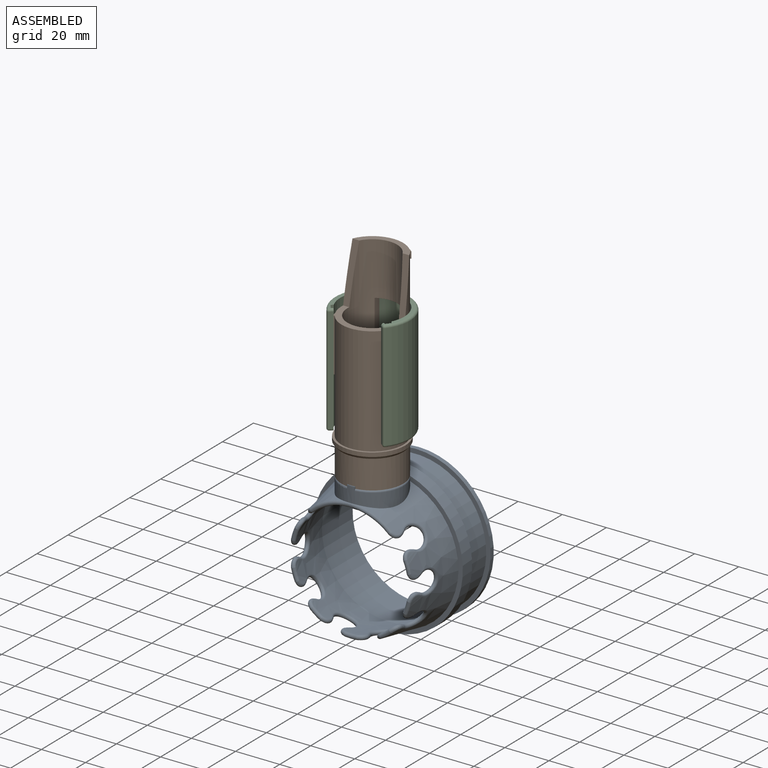
[diagram: assembled view]
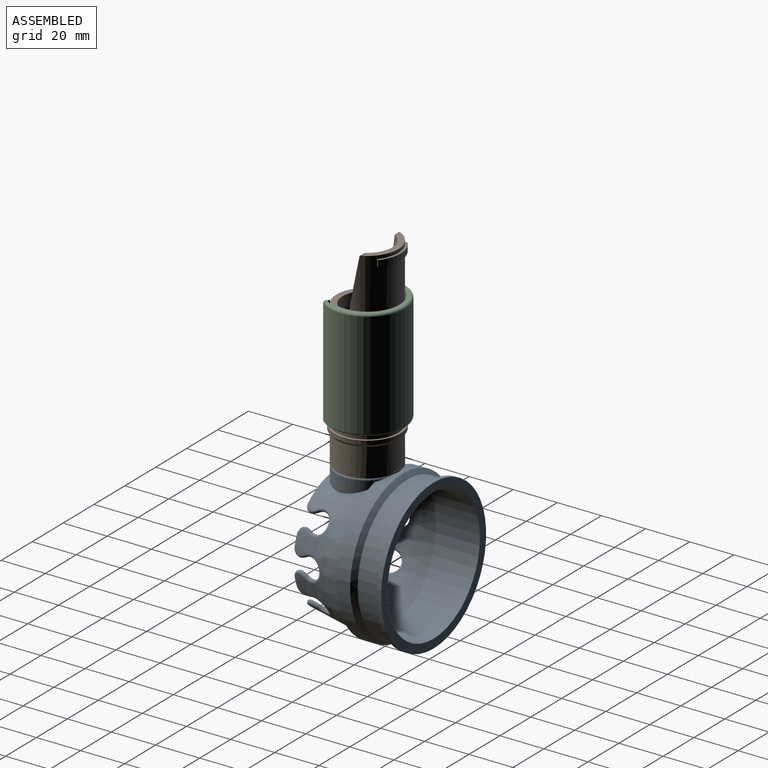
[diagram: assembled view, second angle]
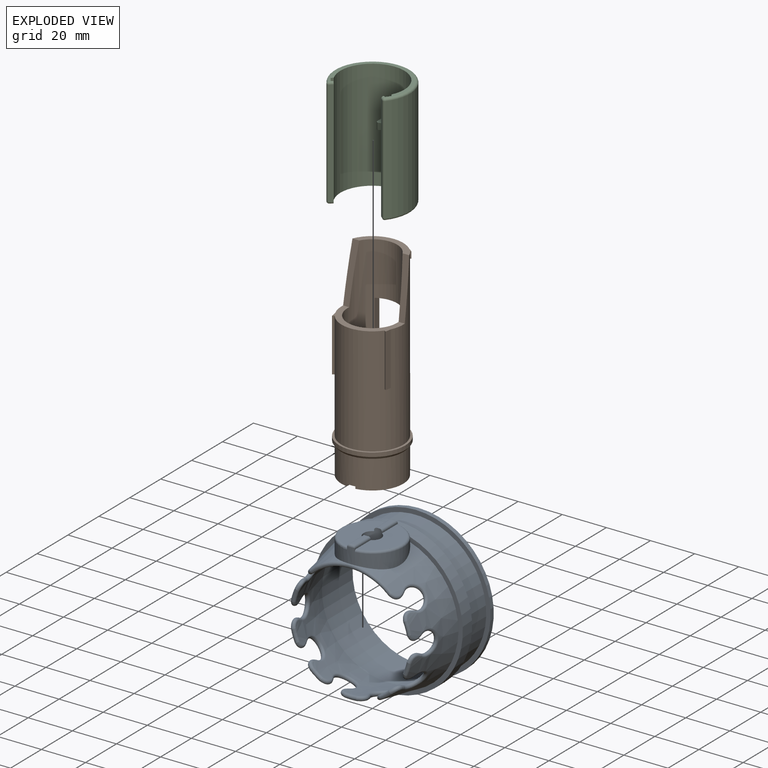
[diagram: exploded view]
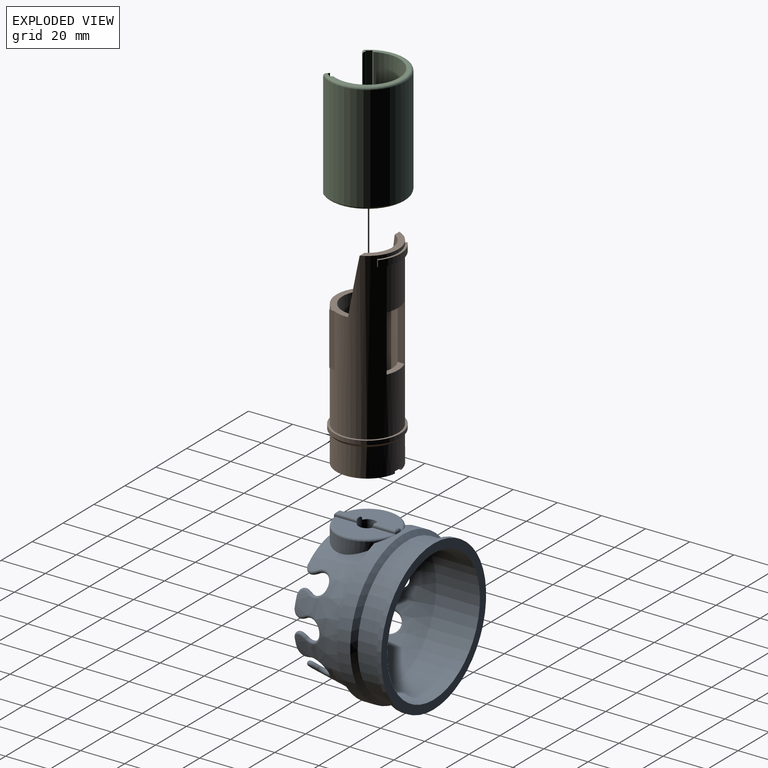
[diagram: exploded view, second angle]
ASSEMBLY  parts=3 mates=3
PART A: 89 faces, bbox 69.7x68.1x45.1 mm
  f0: cylinder r=14mm len=28mm, axis (1,0,0), area 382.5mm2, adj f1,f81,f82,f83,f84,f85,f86,f87
  f1: torus R=13mm, axis (1,0,0), area 3.9mm2, adj f0,f2,f79,f80
  f2: plane 9.07x1.5mm, normal (1,0,0), area 13.5mm2, adj f1,f3,f79,f80
  f3: cylinder r=4mm len=8.1mm, axis (1,0,0), area 161.9mm2, adj f2,f4,f8,f9,f10,f74,f75,f77
  f4: plane 10.3x0.66mm, normal (0,-1,0), area 5.2mm2, adj f3,f5,f6,f8,f78
  f5: bspline ~7.89x3.73mm, area 6.4mm2, adj f4,f78,f82,f86
  f6: cylinder r=14mm len=3.5mm, axis (1,0,0), area 2.3mm2, adj f4,f7,f75,f86
  f7: torus R=13mm, axis (1,0,0), area 3.9mm2, adj f6,f8,f9,f74
  f8: cylinder r=1mm len=10.29mm, axis (0,0,1), area 15.2mm2, adj f3,f4,f7,f9
  f9: plane 9.07x1.5mm, normal (1,0,0), area 13.5mm2, adj f3,f7,f8,f74
  f10: cone r=30mm half-angle=10deg, axis (0,0,-1), area 3197.5mm2, adj f3,f11,f15,f16,f20,f21,f22,f23
  f11: bspline ~10.63x9.41mm, area 32.6mm2, adj f10,f12,f15,f73
  f12: bspline ~11.4x9.5mm, area 35.4mm2, adj f11,f13,f14,f15,f73,f84
  f13: bspline ~8.24x3.59mm, area 11.9mm2, adj f12,f15,f16,f84
  f14: bspline ~7.26x3.59mm, area 11.9mm2, adj f12,f72,f73,f84
  f15: bspline ~7.17x3.51mm, area 10.6mm2, adj f10,f11,f12,f13,f16
  f16: torus R=26.85mm, axis (0,0,1), area 17.4mm2, adj f10,f13,f15,f17,f20,f84
  f17: bspline ~8.25x3.85mm, area 11.9mm2, adj f16,f18,f20,f84
  f18: bspline ~9.5x9.29mm, area 35.4mm2, adj f17,f19,f20,f21,f22,f84
  f19: bspline ~7.26x3.6mm, area 11.9mm2, adj f18,f22,f23,f84
  f20: bspline ~7.04x3.58mm, area 10.6mm2, adj f10,f16,f17,f18,f21
  f21: bspline ~9.41x8.68mm, area 32.6mm2, adj f10,f18,f20,f22
  f22: bspline ~7.04x3.3mm, area 10.6mm2, adj f10,f18,f19,f21,f23
  f23: torus R=26.85mm, axis (0,0,1), area 113.2mm2, adj f10,f19,f22,f24,f27,f28,f83,f84
  f24: bspline ~7.26x3.53mm, area 11.9mm2, adj f23,f25,f28,f84
  f25: bspline ~9.5x9.3mm, area 35.4mm2, adj f24,f26,f28,f29,f30,f84
  f26: bspline ~8.24x3.76mm, area 11.9mm2, adj f25,f30,f31,f84
  f27: cone r=25.69mm half-angle=80deg, axis (0,0,1), area 0mm2, adj f23,f83
  f28: bspline ~7.12x3.38mm, area 10.6mm2, adj f10,f23,f24,f25,f29
  f29: bspline ~9.41x8.68mm, area 32.6mm2, adj f10,f25,f28,f30
  f30: bspline ~7.17x3.9mm, area 10.6mm2, adj f10,f25,f26,f29,f31
  f31: torus R=26.85mm, axis (0,0,1), area 17.4mm2, adj f10,f26,f30,f32,f35,f84
  f32: bspline ~8.25x3.67mm, area 11.9mm2, adj f31,f33,f35,f84
  f33: bspline ~11.4x9.5mm, area 35.4mm2, adj f32,f34,f35,f36,f37,f84
  f34: bspline ~7.26x3.67mm, area 11.9mm2, adj f33,f37,f38,f84
  f35: bspline ~7.04x3.1mm, area 10.6mm2, adj f10,f31,f32,f33,f36
  f36: bspline ~10.63x9.41mm, area 32.6mm2, adj f10,f33,f35,f37
  f37: bspline ~7.04x3.1mm, area 10.6mm2, adj f10,f33,f34,f36,f38
  f38: torus R=26.85mm, axis (0,0,1), area 17.4mm2, adj f10,f34,f37,f39,f42,f84
  f39: bspline ~7.26x3.76mm, area 11.9mm2, adj f38,f40,f42,f84
  f40: bspline ~9.5x9.29mm, area 35.4mm2, adj f39,f41,f42,f43,f44,f84
  f41: bspline ~8.24x3.53mm, area 11.9mm2, adj f40,f44,f45,f84
  f42: bspline ~7.12x3.67mm, area 10.6mm2, adj f10,f38,f39,f40,f43
  f43: bspline ~9.41x8.68mm, area 32.6mm2, adj f10,f40,f42,f44
  f44: bspline ~7.17x3.57mm, area 10.6mm2, adj f10,f40,f41,f43,f45
  f45: torus R=26.85mm, axis (0,0,1), area 17.4mm2, adj f10,f41,f44,f46,f49,f84
  f46: bspline ~8.25x3.52mm, area 11.9mm2, adj f45,f47,f49,f84
  f47: bspline ~10.86x9.5mm, area 35.4mm2, adj f46,f48,f49,f50,f51,f84
  f48: bspline ~7.26x3.83mm, area 11.9mm2, adj f47,f51,f58,f84
  f49: bspline ~7.04x2.96mm, area 10.6mm2, adj f10,f45,f46,f47,f50
  f50: bspline ~10.12x9.41mm, area 32.6mm2, adj f10,f47,f49,f51
  f51: bspline ~7.04x3.5mm, area 10.6mm2, adj f10,f47,f48,f50,f58
  f52: cylinder r=30mm len=60mm, axis (0,0,-1), area 3736.9mm2, adj f10,f53
  f53: plane 68x68mm, normal (0,0,-1), area 804.2mm2, adj f52,f54
  f54: cylinder r=34mm len=68mm, axis (0,0,-1), area 427.3mm2, adj f53,f55
  f55: plane 68x68mm, normal (0,0,1), area 414.7mm2, adj f54,f56
  f56: cylinder r=32mm len=64mm, axis (0,0,-1), area 2010.6mm2, adj f55,f57
  f57: cone r=32mm half-angle=45deg, axis (0,0,1), area 586.5mm2, adj f56,f86
  f58: torus R=26.85mm, axis (0,0,1), area 17.4mm2, adj f10,f48,f51,f59,f62,f84
  f59: bspline ~7.26x3.75mm, area 11.9mm2, adj f58,f60,f62,f84
  f60: bspline ~10.86x9.5mm, area 35.4mm2, adj f59,f61,f62,f63,f64,f84
  f61: bspline ~8.24x3.45mm, area 11.9mm2, adj f60,f64,f65,f84
  f62: bspline ~6.2x3.31mm, area 10.6mm2, adj f10,f58,f59,f60,f63
  f63: bspline ~10.12x9.41mm, area 32.6mm2, adj f10,f60,f62,f64
  f64: bspline ~7.17x3.33mm, area 10.6mm2, adj f10,f60,f61,f63,f65
  f65: torus R=26.85mm, axis (0,0,1), area 17.4mm2, adj f10,f61,f64,f66,f69,f84
  f66: bspline ~8.25x3.6mm, area 11.9mm2, adj f65,f67,f69,f84
  f67: bspline ~9.5x9.3mm, area 35.4mm2, adj f66,f68,f69,f70,f71,f84
  f68: bspline ~7.26x3.85mm, area 11.9mm2, adj f67,f71,f72,f84
  f69: bspline ~7.04x3.31mm, area 10.6mm2, adj f10,f65,f66,f67,f70
  f70: bspline ~9.41x8.68mm, area 32.6mm2, adj f10,f67,f69,f71
  f71: bspline ~7.04x3.58mm, area 10.6mm2, adj f10,f67,f68,f70,f72
  f72: torus R=26.85mm, axis (0,0,1), area 17.4mm2, adj f10,f14,f68,f71,f73,f84
  f73: bspline ~7.12x3.21mm, area 10.6mm2, adj f10,f11,f12,f14,f72
  f74: cylinder r=1mm len=10.29mm, axis (0,0,-1), area 15.2mm2, adj f3,f7,f9,f75
  f75: plane 10.3x0.65mm, normal (0,1,0), area 5.2mm2, adj f3,f6,f74,f76,f77
  f76: bspline ~7.89x3.73mm, area 6.4mm2, adj f75,f77,f86,f87
  f77: plane 26.24x11.25mm, normal (1,0,0), area 209.6mm2, adj f3,f75,f76,f87,f88
  f78: plane 26.24x11.25mm, normal (1,0,0), area 209.6mm2, adj f3,f4,f5,f81,f82
  f79: cylinder r=1mm len=10.29mm, axis (0,0,1), area 15.2mm2, adj f1,f2,f3,f81
  f80: cylinder r=1mm len=10.29mm, axis (0,0,-1), area 15.2mm2, adj f1,f2,f3,f88
  f81: plane 10.35x1.56mm, normal (0,-1,0), area 5.4mm2, adj f0,f3,f78,f79,f82
  f82: torus R=13mm, axis (1,0,0), area 51.9mm2, adj f0,f5,f78,f81
  f83: bspline ~8x1.38mm, area 8.2mm2, adj f0,f23,f27
  f84: cone r=27.66mm half-angle=10deg, axis (0,0,-1), area 2923.6mm2, adj f0,f12,f13,f14,f16,f17,f18,f19
  f85: plane 68x66.56mm, normal (0,0,1), area 374.9mm2, adj f0,f84,f86
  f86: cylinder r=34mm len=68mm, axis (0,0,-1), area 1231mm2, adj f0,f5,f6,f57,f76,f85
  f87: torus R=13mm, axis (1,0,0), area 51.9mm2, adj f0,f76,f77,f88
  f88: plane 10.35x1.56mm, normal (0,1,0), area 5.4mm2, adj f0,f3,f77,f80,f87
PART B: 42 faces, bbox 30x30x91.2 mm
  f0: cylinder r=4mm len=8mm, axis (0,0,-1), area 67mm2, adj f1,f9,f10,f36,f37,f38,f39,f40
  f1: plane 27.71x12mm, normal (0,0,-1), area 242.2mm2, adj f0,f11,f37,f40
  f2: cylinder r=11.25mm len=88.2mm, axis (0,0,-1), area 4736.2mm2, adj f8,f9,f20,f21,f22,f23,f26,f27
  f3: cylinder r=14mm len=75.2mm, axis (0,0,-1), area 4819mm2, adj f4,f5,f6,f7,f8,f14,f15,f17
  f4: plane 24x0.81mm, normal (-0.59,-0.81,0), area 24mm2, adj f3,f5,f24,f27
  f5: plane 24x2.73mm, normal (0.99,-0.17,0), area 66.6mm2, adj f3,f4,f24,f27
  f6: plane 24x2.73mm, normal (-0.99,-0.17,0), area 66.6mm2, adj f3,f7,f25,f27
  f7: plane 24x0.81mm, normal (0.59,-0.81,0), area 24mm2, adj f3,f6,f25,f27
  f8: plane 25.75x8.5mm, normal (0,0,1), area 77.8mm2, adj f2,f3,f26,f28
  f9: plane 22.5x22.5mm, normal (0,0,1), area 347.3mm2, adj f0,f2
  f10: plane 27.71x12mm, normal (0,0,-1), area 242.2mm2, adj f0,f11,f36,f39
  f11: cylinder r=14mm len=28mm, axis (0,0,-1), area 1135.5mm2, adj f1,f10,f12,f36,f37,f38,f39,f40
  f12: cone r=15mm half-angle=40deg, axis (0,0,1), area 141.7mm2, adj f11,f13
  f13: cylinder r=15mm len=30mm, axis (0,0,-1), area 170.4mm2, adj f12,f14
  f14: plane 30x30mm, normal (0,0,1), area 91.1mm2, adj f3,f13
  f15: plane 19.28x4.28mm, normal (0,0,-1), area 20.2mm2, adj f3,f16,f18,f19
  f16: cylinder r=15mm len=19.28mm, axis (0,0,-1), area 62.8mm2, adj f15,f17,f18,f19
  f17: plane 19.28x4.28mm, normal (0,0,1), area 20.2mm2, adj f3,f16,f18,f19
  f18: plane 3x0.77mm, normal (-0.77,-0.64,0), area 3mm2, adj f3,f15,f16,f17
  f19: plane 3x0.77mm, normal (0.77,-0.64,0), area 3mm2, adj f3,f15,f16,f17
  f20: plane 25.5x3.1mm, normal (-1,0,0), area 78.9mm2, adj f2,f3,f21,f23
  f21: plane 11.5x4.33mm, normal (0,0,-1), area 32.9mm2, adj f2,f3,f20,f22
  f22: plane 25.5x3.1mm, normal (1,0,0), area 78.9mm2, adj f2,f3,f21,f23
  f23: plane 11.5x4.33mm, normal (0,0,1), area 32.9mm2, adj f2,f3,f20,f22
  f24: plane 2.73x1.28mm, normal (0,0,-1), area 1.2mm2, adj f3,f4,f5
  f25: plane 2.73x1.28mm, normal (0,0,-1), area 1.2mm2, adj f3,f6,f7
  f26: plane 26x4.5mm, normal (0,-0.99,0.17), area 75.7mm2, adj f2,f3,f8,f27
  f27: plane 28x15mm, normal (0,0,1), area 116.9mm2, adj f2,f3,f4,f5,f6,f7,f26,f28
  f28: plane 26x4.5mm, normal (0,-0.99,0.17), area 75.7mm2, adj f2,f3,f8,f27
  f29: plane 23x4mm, normal (0,1,0), area 92mm2, adj f30,f31,f32,f34
  f30: plane 23x1.82mm, normal (-1,0,0), area 41.9mm2, adj f2,f29,f32,f35
  f31: plane 23x1.82mm, normal (1,0,0), area 41.9mm2, adj f2,f29,f32,f33
  f32: plane 4x2mm, normal (0,0,-1), area 7.8mm2, adj f2,f29,f30,f31
  f33: cylinder r=2mm len=2mm, axis (0,-1,0), area 3.7mm2, adj f2,f31,f34
  f34: cylinder r=2mm len=4mm, axis (1,0,0), area 8mm2, adj f29,f33,f35
  f35: cylinder r=2mm len=2mm, axis (0,1,0), area 3.7mm2, adj f2,f30,f34
  f36: plane 10.39x1mm, normal (-1,0,0), area 10.4mm2, adj f0,f10,f11,f38
  f37: plane 10.39x1mm, normal (1,0,0), area 10.4mm2, adj f0,f1,f11,f38
  f38: plane 10.54x4mm, normal (0,0,-1), area 40.5mm2, adj f0,f11,f36,f37
  f39: plane 10.39x1mm, normal (-1,0,0), area 10.4mm2, adj f0,f10,f11,f41
  f40: plane 10.39x1mm, normal (1,0,0), area 10.4mm2, adj f0,f1,f11,f41
  f41: plane 10.54x4mm, normal (0,0,-1), area 40.5mm2, adj f0,f11,f39,f40
PART C: 33 faces, bbox 37x30x50 mm
  f0: plane 48x1.17mm, normal (0.67,-0.74,0), area 75.3mm2, adj f1,f19,f23,f24
  f1: cylinder r=14.5mm len=50mm, axis (0,0,-1), area 49.6mm2, adj f0,f2,f19,f24
  f2: plane 50x0.9mm, normal (-0.47,0.88,0), area 51mm2, adj f1,f3,f17,f18
  f3: plane 50x2.02mm, normal (0.81,0.59,0), area 125mm2, adj f2,f4,f17,f18
  f4: plane 50x1mm, normal (0.79,-0.61,0), area 63.1mm2, adj f3,f8,f17,f18
  f5: plane 3.36x3mm, normal (-1,0,0), area 10.1mm2, adj f8,f15,f16,f31
  f6: cylinder r=10mm len=7.27mm, axis (0,0,-1), area 22.3mm2, adj f15,f16,f31,f32
  f7: plane 3.36x3mm, normal (1,0,0), area 10.1mm2, adj f8,f15,f16,f32
  f8: cylinder r=14.5mm len=50mm, axis (0,0,-1), area 2909.3mm2, adj f4,f5,f7,f9,f15,f16,f17,f18
  f9: plane 50x1mm, normal (-0.79,-0.61,0), area 63.1mm2, adj f8,f10,f17,f18
  f10: plane 50x2.02mm, normal (-0.81,0.59,0), area 125mm2, adj f9,f11,f17,f18
  f11: plane 50x0.9mm, normal (0.47,0.88,0), area 51mm2, adj f10,f12,f17,f18
  f12: cylinder r=14.5mm len=50mm, axis (0,0,-1), area 49.6mm2, adj f11,f13,f21,f30
  f13: plane 48x1.17mm, normal (-0.67,-0.74,0), area 75.3mm2, adj f12,f21,f27,f30
  f14: cylinder r=17.1mm len=48mm, axis (0,0,-1), area 3679.9mm2, adj f22,f23,f27,f28
  f15: plane 10x5.25mm, normal (0,0,1), area 45.3mm2, adj f5,f6,f7,f8,f31,f32
  f16: plane 10x5.25mm, normal (0,0,-1), area 45.3mm2, adj f5,f6,f7,f8,f31,f32
  f17: plane 32.2x26.11mm, normal (0,0,-1), area 103.8mm2, adj f2,f3,f4,f8,f9,f10,f11,f24
  f18: plane 32.2x26.11mm, normal (0,0,1), area 103.8mm2, adj f2,f3,f4,f8,f9,f10,f11,f19
  f19: cylinder r=1mm len=1.86mm, axis (-0.74,-0.67,0), area 2.5mm2, adj f0,f1,f18,f20
  f20: sphere r=1mm, area 1.6mm2, adj f19,f22,f23
  f21: cylinder r=1mm len=1.86mm, axis (-0.74,0.67,0), area 2.5mm2, adj f12,f13,f18,f25
  f22: torus R=16.1mm, axis (0,0,1), area 117.9mm2, adj f14,f18,f20,f25
  f23: cylinder r=1mm len=48mm, axis (0,0,-1), area 78.4mm2, adj f0,f14,f20,f26
  f24: cylinder r=1mm len=1.86mm, axis (0.74,0.67,0), area 2.5mm2, adj f0,f1,f17,f26
  f25: sphere r=1mm, area 1.6mm2, adj f21,f22,f27
  f26: sphere r=1mm, area 1.6mm2, adj f23,f24,f28
  f27: cylinder r=1mm len=48mm, axis (0,0,-1), area 78.4mm2, adj f13,f14,f25,f29
  f28: torus R=16.1mm, axis (0,0,1), area 117.9mm2, adj f14,f17,f26,f29
  f29: sphere r=1mm, area 1.6mm2, adj f27,f28,f30
  f30: cylinder r=1mm len=1.86mm, axis (0.74,-0.67,0), area 2.5mm2, adj f12,f13,f17,f29
  f31: cylinder r=1mm len=3mm, axis (0,0,-1), area 5.8mm2, adj f5,f6,f15,f16
  f32: cylinder r=1mm len=3mm, axis (0,0,-1), area 5.8mm2, adj f6,f7,f15,f16
PLACE A rot(axis=(0.58,-0.58,0.58),120deg) t=(0,30,-47.1)mm
PLACE B at identity fixed
PLACE C t=(0,0,30.6)mm
MATE slider B.f0 <-> A.f3  axis (0,0,-1) through (0,0,-13)mm
MATE slider C.f6 <-> B.f0  axis (0,0,1) through (0,0,55.6)mm
MATE planar B.f1 <-> A.f77  axis (0,0,-1) through (-7.21,0,-13)mm
